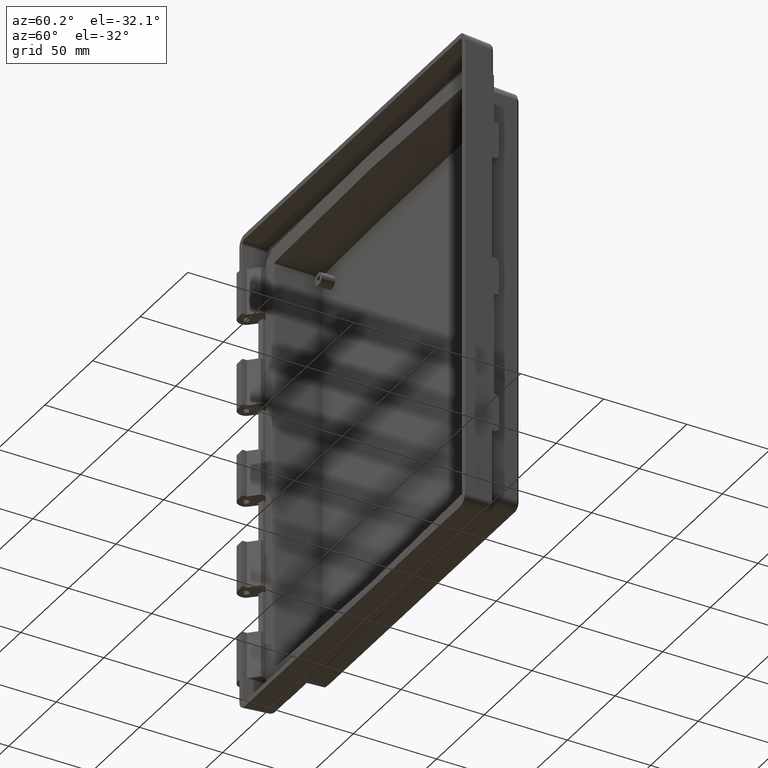
[diagram: clean part render]
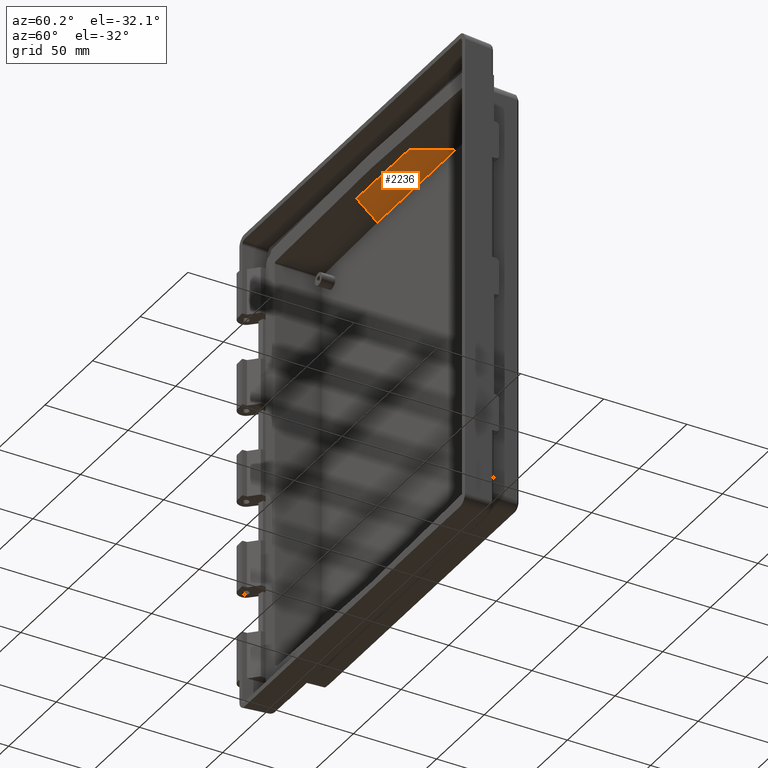
[diagram: same view with one face highlighted and labeled with its STEP entity id]
A machine part, auxiliary view. The second image highlights one B-rep face of the part: STEP entity #2236.
In plain terms, the highlighted planar face has unit normal (0, 0.0523, 0.9986).
Its self-contained STEP definition (entity closure, byte-faithful):
#359 = EDGE_CURVE ( 'NONE', #385, #360, #3571, .T. ) ;
#360 = VERTEX_POINT ( 'NONE', #3567 ) ;
#385 = VERTEX_POINT ( 'NONE', #3632 ) ;
#2236 = ADVANCED_FACE ( 'NONE', ( #8047 ), #8045, .F. ) ;
#2237 = EDGE_LOOP ( 'NONE', ( #2238, #2239, #2242, #2245 ) ) ;
#2238 = ORIENTED_EDGE ( 'NONE', *, *, #359, .F. ) ;
#2239 = ORIENTED_EDGE ( 'NONE', *, *, #2240, .F. ) ;
#2240 = EDGE_CURVE ( 'NONE', #2241, #385, #8046, .T. ) ;
#2241 = VERTEX_POINT ( 'NONE', #8037 ) ;
#2242 = ORIENTED_EDGE ( 'NONE', *, *, #2243, .T. ) ;
#2243 = EDGE_CURVE ( 'NONE', #2241, #2244, #8036, .T. ) ;
#2244 = VERTEX_POINT ( 'NONE', #8032 ) ;
#2245 = ORIENTED_EDGE ( 'NONE', *, *, #2246, .F. ) ;
#2246 = EDGE_CURVE ( 'NONE', #360, #2244, #8031, .T. ) ;
#3567 = CARTESIAN_POINT ( 'NONE',  ( -40.96821627691110700, 30.60000000000000100, 125.4916559775460000 ) ) ;
#3568 = DIRECTION ( 'NONE',  ( -1.000000000000000000, -0.0000000000000000000, -0.0000000000000000000 ) ) ;
#3569 = VECTOR ( 'NONE', #3568, 1000.000000000000000 ) ;
#3570 = CARTESIAN_POINT ( 'NONE',  ( -104.5000000000000100, 30.60000000000000100, 125.4916559775460000 ) ) ;
#3571 = LINE ( 'NONE', #3570, #3569 ) ;
#3632 = CARTESIAN_POINT ( 'NONE',  ( 40.96821627691107900, 30.60000000000000100, 125.4916559775460000 ) ) ;
#8028 = DIRECTION ( 'NONE',  ( 0.5545639901863542700, -0.8310006618297184300, 0.04355089926923314000 ) ) ;
#8029 = VECTOR ( 'NONE', #8028, 1000.000000000000200 ) ;
#8030 = CARTESIAN_POINT ( 'NONE',  ( -45.20677419557775800, 36.95137603224471700, 125.1587944643045300 ) ) ;
#8031 = LINE ( 'NONE', #8030, #8029 ) ;
#8032 = CARTESIAN_POINT ( 'NONE',  ( -27.44348001769335400, 10.33351140468763100, 126.5537776386914100 ) ) ;
#8033 = DIRECTION ( 'NONE',  ( -1.000000000000000000, 2.539281907356389700E-017, -1.330781257381538500E-018 ) ) ;
#8034 = VECTOR ( 'NONE', #8033, 1000.000000000000000 ) ;
#8035 = CARTESIAN_POINT ( 'NONE',  ( -104.5000000000000100, 10.33351140468763200, 126.5537776386914100 ) ) ;
#8036 = LINE ( 'NONE', #8035, #8034 ) ;
#8037 = CARTESIAN_POINT ( 'NONE',  ( 27.44348001770832800, 10.33351140468763100, 126.5537776386914100 ) ) ;
#8038 = DIRECTION ( 'NONE',  ( 0.5545639901863543800, 0.8310006618297184300, -0.04355089926923314000 ) ) ;
#8039 = VECTOR ( 'NONE', #8038, 1000.000000000000100 ) ;
#8040 = CARTESIAN_POINT ( 'NONE',  ( 14.21527737573346600, -9.488628771763473000, 127.5926119859763800 ) ) ;
#8041 = DIRECTION ( 'NONE',  ( 0.0000000000000000000, -0.9986295347545739400, 0.05233595624294395300 ) ) ;
#8042 = DIRECTION ( 'NONE',  ( 0.0000000000000000000, 0.05233595624294395300, 0.9986295347545739400 ) ) ;
#8043 = CARTESIAN_POINT ( 'NONE',  ( -104.5000000000000100, -0.1779422512260094000, 127.1046595818344500 ) ) ;
#8044 = AXIS2_PLACEMENT_3D ( 'NONE', #8043, #8042, #8041 ) ;
#8045 = PLANE ( 'NONE',  #8044 ) ;
#8046 = LINE ( 'NONE', #8040, #8039 ) ;
#8047 = FACE_OUTER_BOUND ( 'NONE', #2237, .T. ) ;